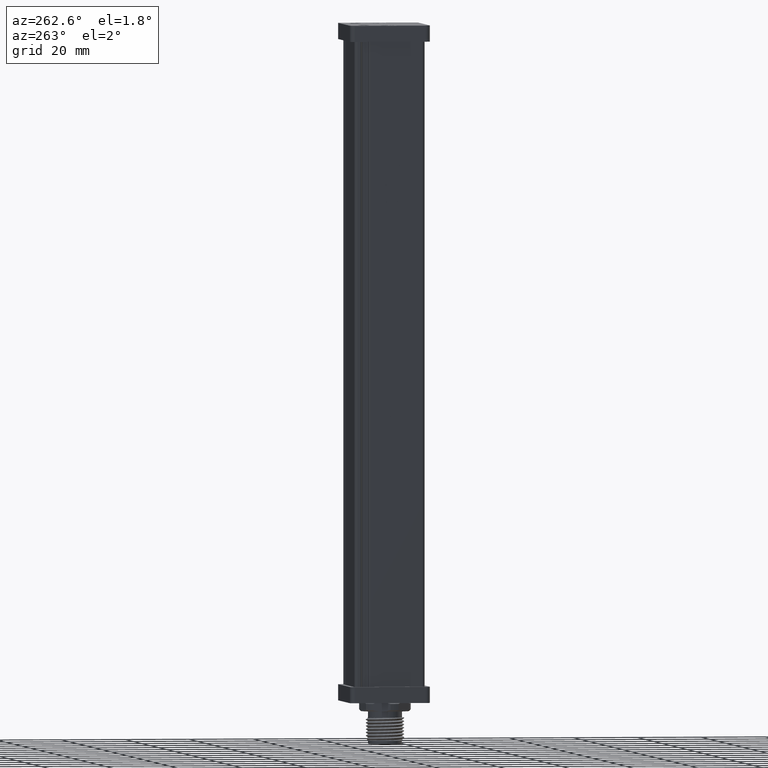
[diagram: clean part render]
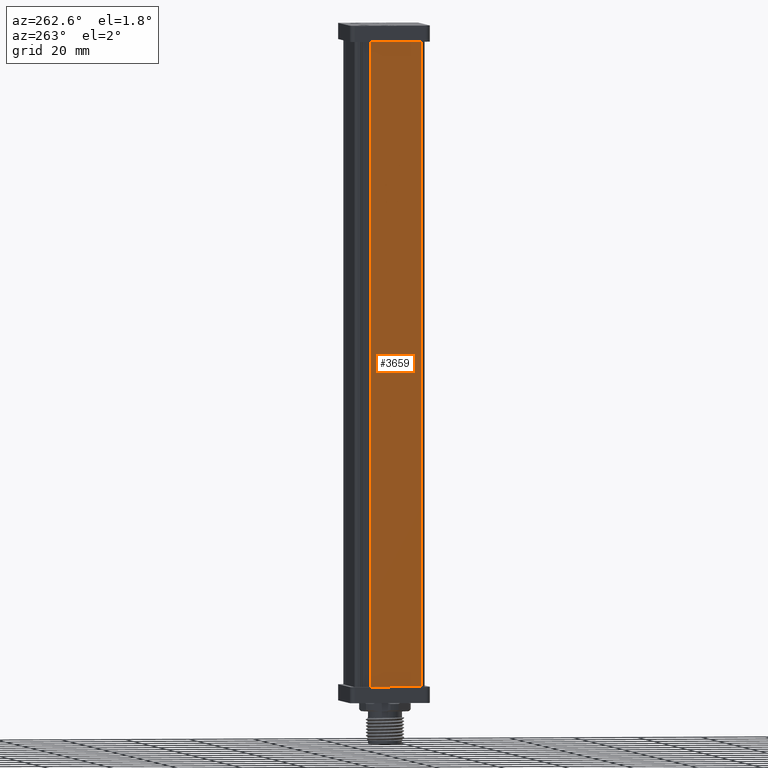
[diagram: same view with one face highlighted and labeled with its STEP entity id]
A machine part, auxiliary view. The second image highlights one B-rep face of the part: STEP entity #3659.
In plain terms, the highlighted planar face has unit normal (1, -0, 0).
Its self-contained STEP definition (entity closure, byte-faithful):
#246 = VECTOR ( 'NONE', #12494, 1000.000000000000000 ) ;
#2225 = PLANE ( 'NONE',  #6840 ) ;
#2454 = FACE_OUTER_BOUND ( 'NONE', #17278, .T. ) ;
#3520 = DIRECTION ( 'NONE',  ( -8.228608120332550877E-17, 0.000000000000000000, 1.000000000000000000 ) ) ;
#3659 = ADVANCED_FACE ( 'NONE', ( #2454 ), #2225, .F. ) ;
#4591 = EDGE_CURVE ( 'NONE', #20142, #19028, #9191, .T. ) ;
#5361 = ORIENTED_EDGE ( 'NONE', *, *, #22404, .T. ) ;
#5412 = CARTESIAN_POINT ( 'NONE',  ( -14.00000000000000711, -102.0000000000000000, 10.00000000000000711 ) ) ;
#6840 = AXIS2_PLACEMENT_3D ( 'NONE', #7355, #15975, #7464 ) ;
#6936 = ORIENTED_EDGE ( 'NONE', *, *, #4591, .T. ) ;
#7284 = CARTESIAN_POINT ( 'NONE',  ( -14.00000000000000711, 102.0000000000000142, 10.00000000000000711 ) ) ;
#7355 = CARTESIAN_POINT ( 'NONE',  ( -14.00000000000000711, -90.00000000000000000, 10.00000000000000711 ) ) ;
#7464 = DIRECTION ( 'NONE',  ( 1.372305772831444623E-16, -0.000000000000000000, -1.000000000000000000 ) ) ;
#7840 = VERTEX_POINT ( 'NONE', #10812 ) ;
#8326 = DIRECTION ( 'NONE',  ( 0.000000000000000000, -1.000000000000000000, 0.000000000000000000 ) ) ;
#8442 = CARTESIAN_POINT ( 'NONE',  ( -14.00000000000000711, 0.000000000000000000, -6.100000000000001421 ) ) ;
#9075 = CARTESIAN_POINT ( 'NONE',  ( -14.00000000000000711, -102.0000000000000000, 10.00000000000000711 ) ) ;
#9191 = LINE ( 'NONE', #9075, #246 ) ;
#9941 = ORIENTED_EDGE ( 'NONE', *, *, #19747, .F. ) ;
#10201 = VECTOR ( 'NONE', #17715, 1000.000000000000000 ) ;
#10324 = CARTESIAN_POINT ( 'NONE',  ( -14.00000000000000711, -90.00000000000000000, 10.00000000000000711 ) ) ;
#10679 = EDGE_CURVE ( 'NONE', #20900, #20142, #11521, .T. ) ;
#10812 = CARTESIAN_POINT ( 'NONE',  ( -14.00000000000000711, 102.0000000000000142, 10.00000000000000711 ) ) ;
#11343 = VECTOR ( 'NONE', #3520, 1000.000000000000000 ) ;
#11521 = LINE ( 'NONE', #8442, #17387 ) ;
#12285 = LINE ( 'NONE', #7284, #11343 ) ;
#12494 = DIRECTION ( 'NONE',  ( -1.372305772831444623E-16, 0.000000000000000000, 1.000000000000000000 ) ) ;
#13947 = LINE ( 'NONE', #10324, #10201 ) ;
#15345 = CARTESIAN_POINT ( 'NONE',  ( -14.00000000000000711, 102.0000000000000142, -6.099999999999992539 ) ) ;
#15760 = CARTESIAN_POINT ( 'NONE',  ( -14.00000000000000711, -102.0000000000000000, -6.100000000000001421 ) ) ;
#15975 = DIRECTION ( 'NONE',  ( 1.000000000000000000, 0.000000000000000000, 1.372305772831444623E-16 ) ) ;
#16721 = ORIENTED_EDGE ( 'NONE', *, *, #10679, .T. ) ;
#17278 = EDGE_LOOP ( 'NONE', ( #16721, #6936, #5361, #9941 ) ) ;
#17387 = VECTOR ( 'NONE', #8326, 1000.000000000000000 ) ;
#17715 = DIRECTION ( 'NONE',  ( 0.000000000000000000, 1.000000000000000000, 0.000000000000000000 ) ) ;
#19028 = VERTEX_POINT ( 'NONE', #5412 ) ;
#19747 = EDGE_CURVE ( 'NONE', #20900, #7840, #12285, .T. ) ;
#20142 = VERTEX_POINT ( 'NONE', #15760 ) ;
#20900 = VERTEX_POINT ( 'NONE', #15345 ) ;
#22404 = EDGE_CURVE ( 'NONE', #19028, #7840, #13947, .T. ) ;